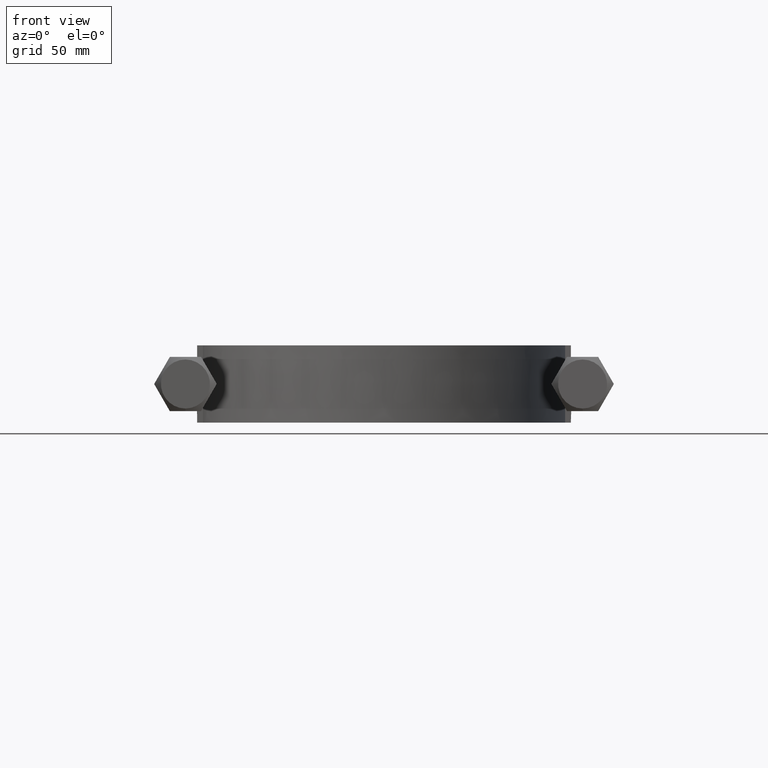
[diagram: clean part render]
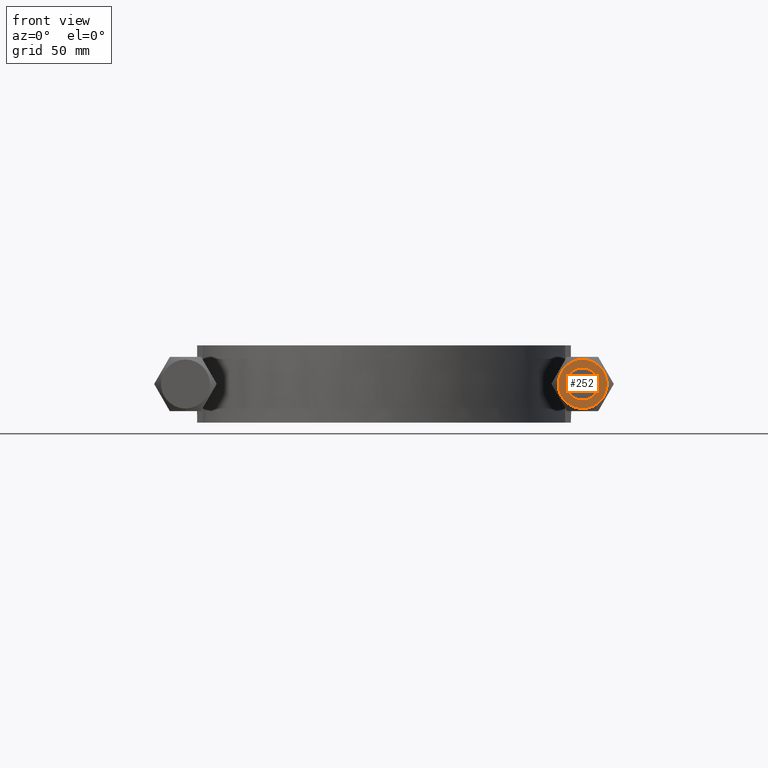
[diagram: same view with one face highlighted and labeled with its STEP entity id]
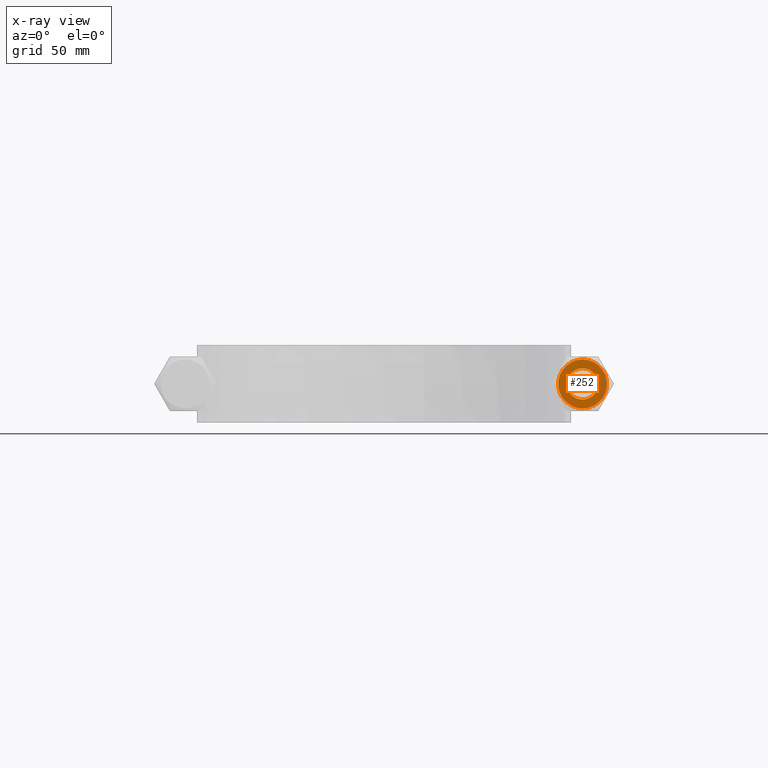
[diagram: x-ray of the same camera — body ghosted, the highlighted face saturated]
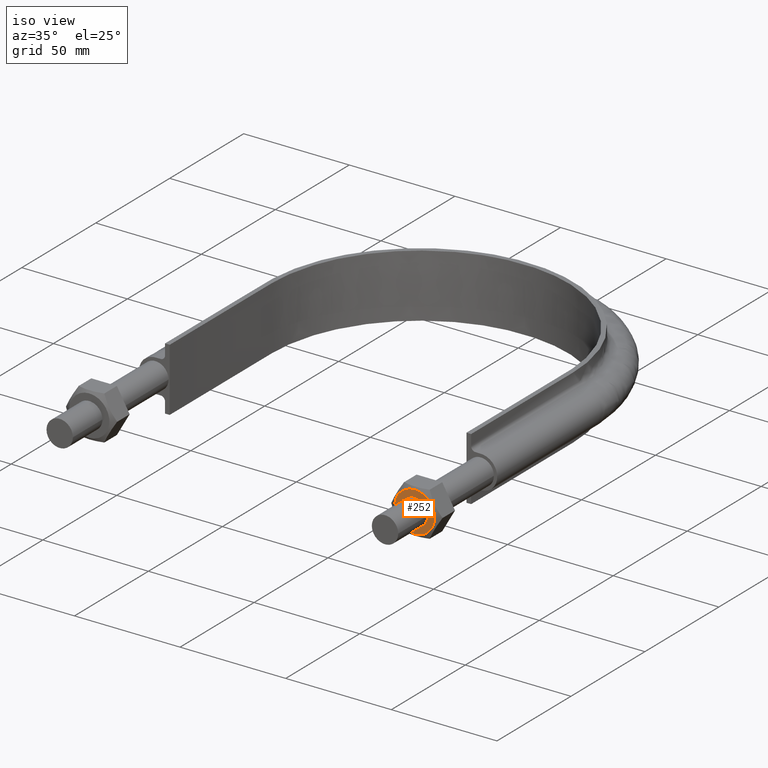
[diagram: same view with one face highlighted and labeled with its STEP entity id]
A machine part, front view. The second image highlights one B-rep face of the part: STEP entity #252.
The next image is the same camera in x-ray: the body ghosted, the highlighted face saturated — about 0% of this face is hidden behind the body in this view.
A second angle (iso view) of the same face is appended — the face is thin or edge-on in the first view.
In plain terms, the highlighted planar face has unit normal (0, 1, -0).
Its self-contained STEP definition (entity closure, byte-faithful):
#252 = ADVANCED_FACE( '', ( #342, #343 ), #344, .F. );
#342 = FACE_BOUND( '', #1284, .T. );
#343 = FACE_OUTER_BOUND( '', #1285, .T. );
#344 = PLANE( '', #1286 );
#1284 = EDGE_LOOP( '', ( #1511 ) );
#1285 = EDGE_LOOP( '', ( #1512 ) );
#1286 = AXIS2_PLACEMENT_3D( '', #1513, #1514, #1515 );
#1511 = ORIENTED_EDGE( '', *, *, #1606, .T. );
#1512 = ORIENTED_EDGE( '', *, *, #1594, .T. );
#1513 = CARTESIAN_POINT( '', ( 70.9378221735089, 20.0000000000000, -10.5000000000000 ) );
#1514 = DIRECTION( '', ( 2.44921270764475E-016, 1.00000000000000, -3.06151625396993E-016 ) );
#1515 = DIRECTION( '', ( 0.500000000000000, -3.87595720385931E-016, -0.866025403784439 ) );
#1594 = EDGE_CURVE( '', #1697, #1697, #1698, .F. );
#1606 = EDGE_CURVE( '', #1718, #1718, #1719, .T. );
#1697 = VERTEX_POINT( '', #2071 );
#1698 = CIRCLE( '', #2072, 9.49999999999998 );
#1718 = VERTEX_POINT( '', #2151 );
#1719 = CIRCLE( '', #2152, 6.05300000000000 );
#2071 = CARTESIAN_POINT( '', ( 76.9999999999999, 20.0000000000000, -9.49999999999999 ) );
#2072 = AXIS2_PLACEMENT_3D( '', #2215, #2216, #2217 );
#2151 = CARTESIAN_POINT( '', ( 76.9999999999999, 20.0000000000000, -6.05300000000001 ) );
#2152 = AXIS2_PLACEMENT_3D( '', #2228, #2229, #2230 );
#2215 = CARTESIAN_POINT( '', ( 76.9999999999999, 20.0000000000000, -5.16431332338683E-015 ) );
#2216 = DIRECTION( '', ( 2.44921270764475E-016, 1.00000000000000, -3.06151625396993E-016 ) );
#2217 = DIRECTION( '', ( 1.66533453693773E-016, -3.06151625396993E-016, -1.00000000000000 ) );
#2228 = CARTESIAN_POINT( '', ( 76.9999999999999, 20.0000000000000, -6.07153155361564E-015 ) );
#2229 = DIRECTION( '', ( 2.44921270764475E-016, 1.00000000000000, -3.06151625396993E-016 ) );
#2230 = DIRECTION( '', ( 1.66533453693773E-016, -3.06151625396993E-016, -1.00000000000000 ) );